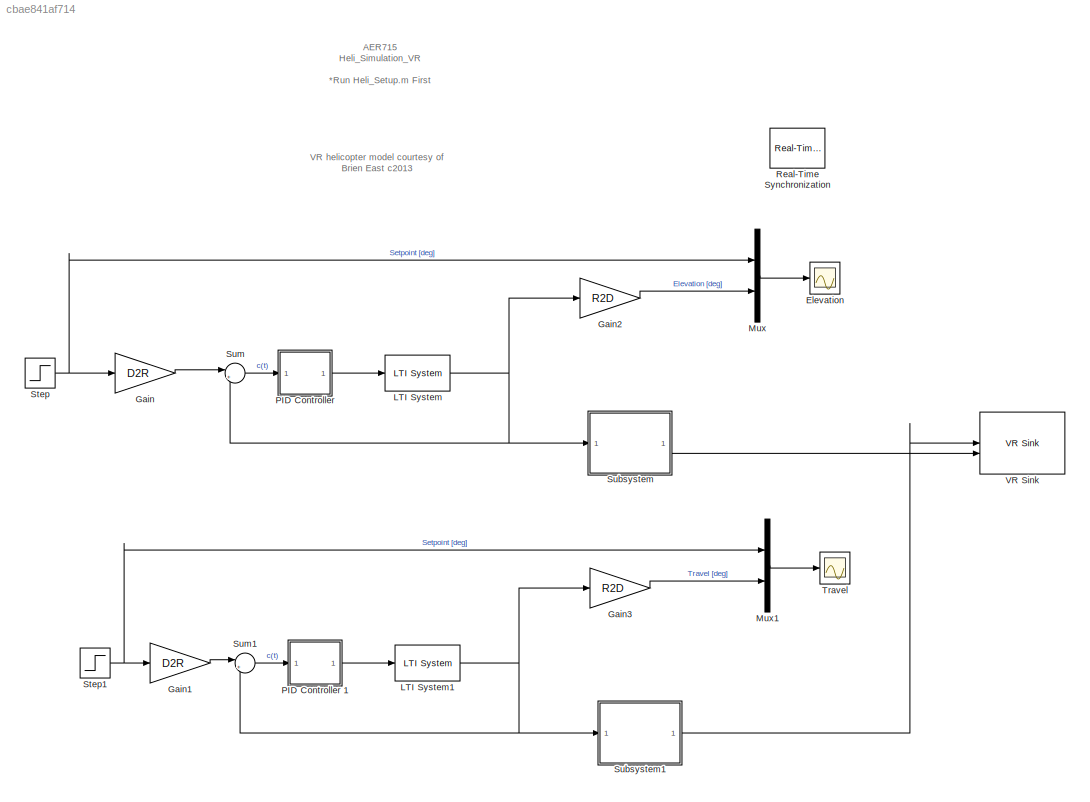
MODEL slx_cbae841af714
KIND model
CONFIG AbsTol = auto
CONFIG EnableMultiTasking = on
CONFIG FixedStep = auto
CONFIG MaxStep = auto
CONFIG MinStep = auto
CONFIG RelTol = 1e-3
CONFIG SampleTimeConstraint = Unconstrained
CONFIG SolverName = FixedStepAuto
CONFIG StartTime = 0.0
CONFIG StopTime = 50
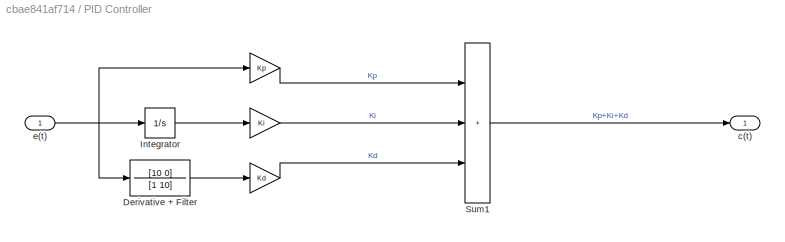
BLOCK [SubSystem]  PID Controller 
BLOCK [Gain]  PID Controller / 
  Gain = Kp
BLOCK [Gain]  PID Controller /  
  Gain = Ki
BLOCK [Gain]  PID Controller /   
  Gain = Kd
BLOCK [TransferFcn]  PID Controller /Derivative + Filter
  Denominator = [1 10]
  Numerator = [10 0]
BLOCK [Integrator]  PID Controller /Integrator
  LowerSaturationLimit = -30
  UpperSaturationLimit = 30
BLOCK [Sum]  PID Controller /Sum1
  IconShape = rectangular
  Inputs = +++
BLOCK [Outport]  PID Controller /c(t)
BLOCK [Inport]  PID Controller /e(t)
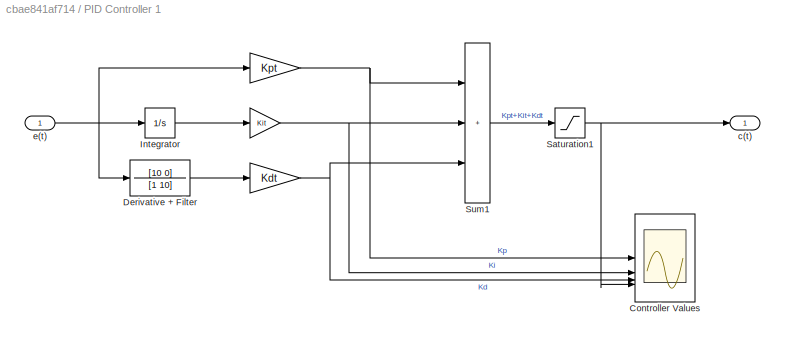
BLOCK [SubSystem]  PID Controller 1
BLOCK [Gain]  PID Controller 1/ 
  Gain = Kpt
BLOCK [Gain]  PID Controller 1/  
  Gain = Kit
BLOCK [Gain]  PID Controller 1/   
  Gain = Kdt
BLOCK [Scope]  PID Controller 1/Controller Values
  Floating = off
  NumInputPorts = 4
  ScopeSpecificationString = Simulink.scopes.TimeScopeBlockCfg('CurrentConfiguration', extmgr.ConfigurationSet(extmgr.Configuration('Core','General UI',true,'FigureColor',[0.501960784313725 0.501960784313725 0.501960784313725]),extmgr.Configuration('Core','Source UI',true),extmgr.Configuration('Sources','WiredSimulink',true,'DataLogging',true,'DataLoggingVariableName','CV','DataLoggingSaveFormat','StructureWithTime','DataLogg...<+6125ch>
BLOCK [TransferFcn]  PID Controller 1/Derivative + Filter
  Denominator = [1 10]
  Numerator = [10 0]
BLOCK [Integrator]  PID Controller 1/Integrator
  LowerSaturationLimit = -30
  UpperSaturationLimit = 30
BLOCK [Saturate]  PID Controller 1/Saturation1
  LowerLimit = -VSUM_MAX
  UpperLimit = VSUM_MAX
BLOCK [Sum]  PID Controller 1/Sum1
  IconShape = rectangular
  Inputs = +++
BLOCK [Outport]  PID Controller 1/c(t)
BLOCK [Inport]  PID Controller 1/e(t)
BLOCK [Scope] Elevation
  Floating = off
  NumInputPorts = 1
  ScopeSpecificationString = Simulink.scopes.TimeScopeBlockCfg('CurrentConfiguration', extmgr.ConfigurationSet(extmgr.Configuration('Core','General UI',true,'FigureColor',[0.501960784313725 0.501960784313725 0.501960784313725]),extmgr.Configuration('Core','Source UI',true),extmgr.Configuration('Sources','WiredSimulink',true,'DataLoggingSaveFormat','StructureWithTime','DataLoggingDecimation','1','DataLoggingDecimateData',true)...<+2571ch>
BLOCK [Gain] Gain
  Gain = D2R
BLOCK [Gain] Gain1
  Gain = D2R
BLOCK [Gain] Gain2
  Gain = R2D
BLOCK [Gain] Gain3
  Gain = R2D
BLOCK [Reference] LTI System  REF=cstblocks/LTI System
  SourceBlock = cstblocks/LTI System
  SourceType = LTI Block
BLOCK [Reference] LTI System1  REF=cstblocks/LTI System
  SourceBlock = cstblocks/LTI System
  SourceType = LTI Block
BLOCK [Mux] Mux
  DisplayOption = bar
  Inputs = 2
BLOCK [Mux] Mux1
  DisplayOption = bar
  Inputs = 2
BLOCK [Reference] Real-Time Synchronization  REF=sldrtlib/Real-Time
Synchronization
  SourceBlock = sldrtlib/Real-Time\nSynchronization
  SourceProductName = Simulink Desktop Real-Time
  SourceType = Simulink Desktop Real-Time Synchronization
BLOCK [Step] Step
  After = ELEV_SLF
  Before = ELEV_START
  SampleTime = 0.1
BLOCK [Step] Step1
  After = YAW_SP
  Before = YAW_START
  SampleTime = 0.1
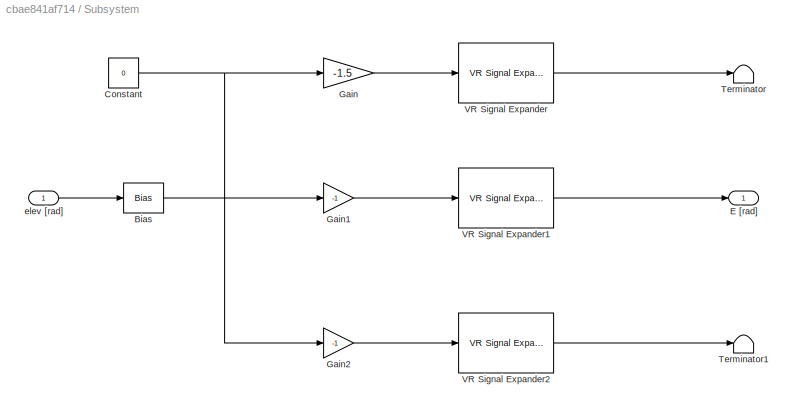
BLOCK [SubSystem] Subsystem
BLOCK [Bias] Subsystem/Bias
  Bias = ELEV_START/180*pi
  SaturateOnIntegerOverflow = off
BLOCK [Constant] Subsystem/Constant
  Value = 0
BLOCK [Outport] Subsystem/E [rad]
BLOCK [Gain] Subsystem/Gain
  Gain = -1.5
BLOCK [Gain] Subsystem/Gain1
  Gain = -1
BLOCK [Gain] Subsystem/Gain2
  Gain = -1
BLOCK [Terminator] Subsystem/Terminator
BLOCK [Terminator] Subsystem/Terminator1
BLOCK [Reference] Subsystem/VR Signal Expander  REF=vrlib/VR Signal Expander
  SourceBlock = vrlib/VR Signal Expander
  SourceProductName = Simulink 3D Animation
  SourceType = VR Signal Expander
BLOCK [Reference] Subsystem/VR Signal Expander1  REF=vrlib/VR Signal Expander
  SourceBlock = vrlib/VR Signal Expander
  SourceProductName = Simulink 3D Animation
  SourceType = VR Signal Expander
BLOCK [Reference] Subsystem/VR Signal Expander2  REF=vrlib/VR Signal Expander
  SourceBlock = vrlib/VR Signal Expander
  SourceProductName = Simulink 3D Animation
  SourceType = VR Signal Expander
BLOCK [Inport] Subsystem/elev [rad]
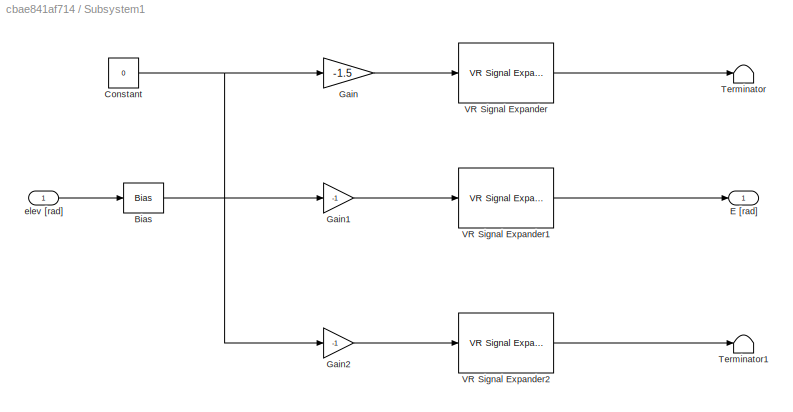
BLOCK [SubSystem] Subsystem1
BLOCK [Bias] Subsystem1/Bias
  Bias = YAW_START/180*pi
  SaturateOnIntegerOverflow = off
BLOCK [Constant] Subsystem1/Constant
  Value = 0
BLOCK [Outport] Subsystem1/E [rad]
BLOCK [Gain] Subsystem1/Gain
  Gain = -1.5
BLOCK [Gain] Subsystem1/Gain1
  Gain = -1
BLOCK [Gain] Subsystem1/Gain2
  Gain = -1
BLOCK [Terminator] Subsystem1/Terminator
BLOCK [Terminator] Subsystem1/Terminator1
BLOCK [Reference] Subsystem1/VR Signal Expander  REF=vrlib/VR Signal Expander
  SourceBlock = vrlib/VR Signal Expander
  SourceProductName = Simulink 3D Animation
  SourceType = VR Signal Expander
BLOCK [Reference] Subsystem1/VR Signal Expander1  REF=vrlib/VR Signal Expander
  SourceBlock = vrlib/VR Signal Expander
  SourceProductName = Simulink 3D Animation
  SourceType = VR Signal Expander
BLOCK [Reference] Subsystem1/VR Signal Expander2  REF=vrlib/VR Signal Expander
  SourceBlock = vrlib/VR Signal Expander
  SourceProductName = Simulink 3D Animation
  SourceType = VR Signal Expander
BLOCK [Inport] Subsystem1/elev [rad]
BLOCK [Sum] Sum
  Inputs = |+-
BLOCK [Sum] Sum1
  Inputs = |+-
BLOCK [Scope] Travel
  Floating = off
  NumInputPorts = 1
  ScopeSpecificationString = C++SS(StrPVP('SaveName','ScopeData1'),StrPVP('LimitDataPoints','on'),StrPVP('DataFormat','Array'),StrPVP('Decimation','1'),StrPVP('BlockParamSampleInput','off'))
BLOCK [Reference] VR Sink  REF=vrlib/VR Sink
  InstantiateOnLoad = on
  SourceBlock = vrlib/VR Sink
  SourceType = Virtual Reality Sink
ANNOTATION (root): AER715 Heli_Simulation_VR *Run Heli_Setup.m First
ANNOTATION (root): VR helicopter model courtesy of Brien East c2013
LINE  PID Controller /   :1 ->  PID Controller /Sum1:3
LINE  PID Controller /  :1 ->  PID Controller /Sum1:2
LINE  PID Controller / :1 ->  PID Controller /Sum1:1
LINE  PID Controller /Derivative + Filter:1 ->  PID Controller /   :1
LINE  PID Controller /Integrator:1 ->  PID Controller /  :1
LINE  PID Controller /Sum1:1 ->  PID Controller /c(t):1
NET  PID Controller /e(t):1 ->  PID Controller / :1,  PID Controller /Derivative + Filter:1,  PID Controller /Integrator:1
NET  PID Controller 1/   :1 ->  PID Controller 1/Controller Values:3,  PID Controller 1/Sum1:3
NET  PID Controller 1/  :1 ->  PID Controller 1/Controller Values:2,  PID Controller 1/Sum1:2
NET  PID Controller 1/ :1 ->  PID Controller 1/Controller Values:1,  PID Controller 1/Sum1:1
LINE  PID Controller 1/Derivative + Filter:1 ->  PID Controller 1/   :1
LINE  PID Controller 1/Integrator:1 ->  PID Controller 1/  :1
NET  PID Controller 1/Saturation1:1 ->  PID Controller 1/Controller Values:4,  PID Controller 1/c(t):1
LINE  PID Controller 1/Sum1:1 ->  PID Controller 1/Saturation1:1
NET  PID Controller 1/e(t):1 ->  PID Controller 1/ :1,  PID Controller 1/Derivative + Filter:1,  PID Controller 1/Integrator:1
LINE  PID Controller 1:1 -> LTI System1:1
LINE  PID Controller :1 -> LTI System:1
LINE Gain1:1 -> Sum1:1
LINE Gain2:1 -> Mux:2
LINE Gain3:1 -> Mux1:2
LINE Gain:1 -> Sum:1
NET LTI System1:1 -> Gain3:1, Subsystem1:1, Sum1:2
NET LTI System:1 -> Gain2:1, Subsystem:1, Sum:2
LINE Mux1:1 -> Travel:1
LINE Mux:1 -> Elevation:1
NET Step1:1 -> Gain1:1, Mux1:1
NET Step:1 -> Gain:1, Mux:1
LINE Subsystem/Bias:1 -> Subsystem/Gain1:1
NET Subsystem/Constant:1 -> Subsystem/Gain2:1, Subsystem/Gain:1
LINE Subsystem/Gain1:1 -> Subsystem/VR Signal Expander1:1
LINE Subsystem/Gain2:1 -> Subsystem/VR Signal Expander2:1
LINE Subsystem/Gain:1 -> Subsystem/VR Signal Expander:1
LINE Subsystem/VR Signal Expander1:1 -> Subsystem/E [rad]:1
LINE Subsystem/VR Signal Expander2:1 -> Subsystem/Terminator1:1
LINE Subsystem/VR Signal Expander:1 -> Subsystem/Terminator:1
LINE Subsystem/elev [rad]:1 -> Subsystem/Bias:1
LINE Subsystem1/Bias:1 -> Subsystem1/Gain1:1
NET Subsystem1/Constant:1 -> Subsystem1/Gain2:1, Subsystem1/Gain:1
LINE Subsystem1/Gain1:1 -> Subsystem1/VR Signal Expander1:1
LINE Subsystem1/Gain2:1 -> Subsystem1/VR Signal Expander2:1
LINE Subsystem1/Gain:1 -> Subsystem1/VR Signal Expander:1
LINE Subsystem1/VR Signal Expander1:1 -> Subsystem1/E [rad]:1
LINE Subsystem1/VR Signal Expander2:1 -> Subsystem1/Terminator1:1
LINE Subsystem1/VR Signal Expander:1 -> Subsystem1/Terminator:1
LINE Subsystem1/elev [rad]:1 -> Subsystem1/Bias:1
LINE Subsystem1:1 -> VR Sink:1
LINE Subsystem:1 -> VR Sink:2
LINE Sum1:1 ->  PID Controller 1:1
LINE Sum:1 ->  PID Controller :1
note: NET lines group one-source signal fan-out (src -> all destinations, sorted); 1:1 wires keep LINE
